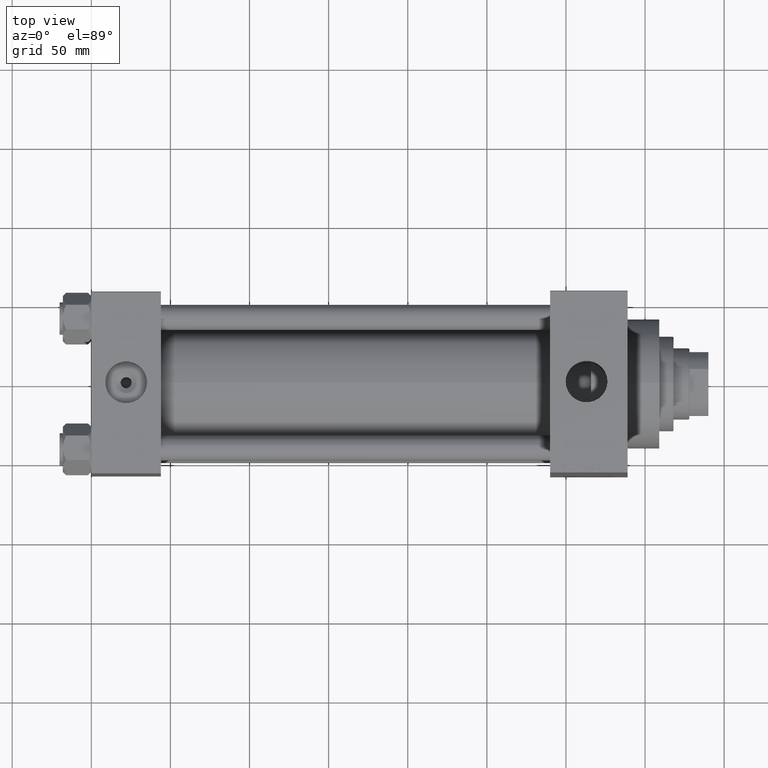
[diagram: clean part render]
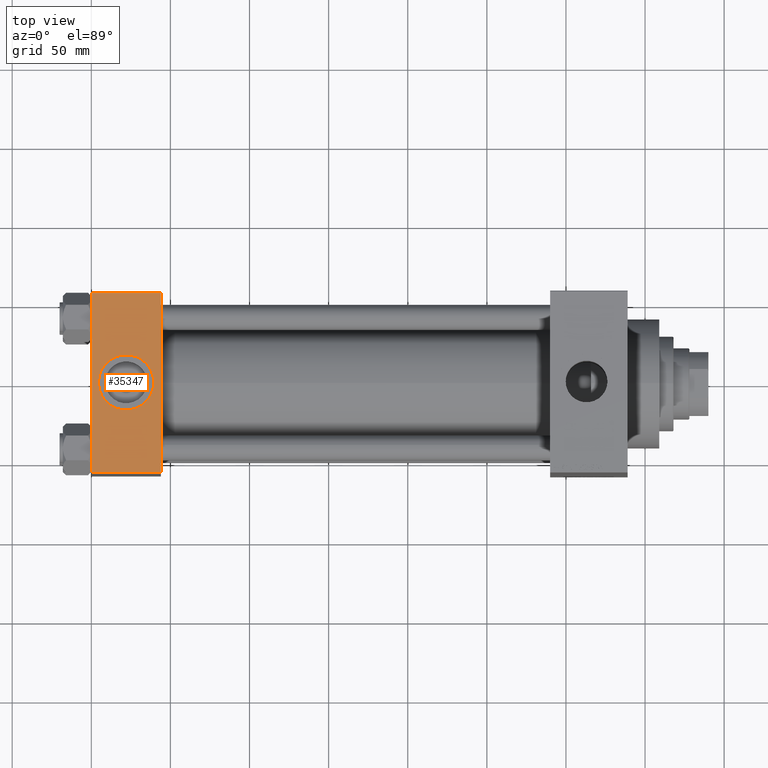
[diagram: same view with one face highlighted and labeled with its STEP entity id]
A machine part, top view. The second image highlights one B-rep face of the part: STEP entity #35347.
In plain terms, the highlighted planar face has unit normal (0, 0, -1).
Its self-contained STEP definition (entity closure, byte-faithful):
#1002 = CARTESIAN_POINT ( 'NONE',  ( 0.000000000000000000, -57.00000000000003553, 57.49999999999999289 ) ) ;
#2160 = CIRCLE ( 'NONE', #18419, 17.50000000000000000 ) ;
#4334 = DIRECTION ( 'NONE',  ( -1.000000000000000000, 0.000000000000000000, 0.000000000000000000 ) ) ;
#5635 = ORIENTED_EDGE ( 'NONE', *, *, #37370, .T. ) ;
#8023 = AXIS2_PLACEMENT_3D ( 'NONE', #28722, #46861, #25569 ) ;
#8460 = VERTEX_POINT ( 'NONE', #29396 ) ;
#8983 = VECTOR ( 'NONE', #4334, 1000.000000000000000 ) ;
#9064 = EDGE_CURVE ( 'NONE', #21210, #8460, #34822, .T. ) ;
#13057 = CIRCLE ( 'NONE', #40099, 17.50000000000000000 ) ;
#13118 = DIRECTION ( 'NONE',  ( 0.000000000000000000, -1.000000000000000000, -1.206764157201257045E-16 ) ) ;
#13966 = PLANE ( 'NONE',  #8023 ) ;
#14254 = ORIENTED_EDGE ( 'NONE', *, *, #27647, .F. ) ;
#16074 = EDGE_CURVE ( 'NONE', #26790, #17550, #13057, .T. ) ;
#16242 = DIRECTION ( 'NONE',  ( 0.000000000000000000, -1.000000000000000000, -1.206764157201257045E-16 ) ) ;
#17550 = VERTEX_POINT ( 'NONE', #22814 ) ;
#17672 = VERTEX_POINT ( 'NONE', #1002 ) ;
#18419 = AXIS2_PLACEMENT_3D ( 'NONE', #26108, #46151, #19810 ) ;
#19810 = DIRECTION ( 'NONE',  ( 1.000000000000000000, 0.000000000000000000, 0.000000000000000000 ) ) ;
#20220 = ORIENTED_EDGE ( 'NONE', *, *, #42184, .T. ) ;
#20472 = VECTOR ( 'NONE', #16242, 1000.000000000000000 ) ;
#21210 = VERTEX_POINT ( 'NONE', #36100 ) ;
#21400 = CARTESIAN_POINT ( 'NONE',  ( 44.00000000000000000, -57.00000000000003553, 57.49999999999999289 ) ) ;
#21885 = ORIENTED_EDGE ( 'NONE', *, *, #16074, .F. ) ;
#22094 = CARTESIAN_POINT ( 'NONE',  ( 39.50000000000000000, -8.673617379884035472E-15, 57.50000000000000000 ) ) ;
#22814 = CARTESIAN_POINT ( 'NONE',  ( 4.499999999999997335, -6.530485481376167224E-15, 57.50000000000000000 ) ) ;
#24101 = CARTESIAN_POINT ( 'NONE',  ( 22.00000000000000000, -8.673617379884035472E-15, 57.50000000000000000 ) ) ;
#24609 = FACE_BOUND ( 'NONE', #32102, .T. ) ;
#24843 = FACE_OUTER_BOUND ( 'NONE', #45849, .T. ) ;
#25569 = DIRECTION ( 'NONE',  ( 0.000000000000000000, 1.000000000000000000, 1.206764157201257045E-16 ) ) ;
#26050 = VECTOR ( 'NONE', #43415, 1000.000000000000000 ) ;
#26108 = CARTESIAN_POINT ( 'NONE',  ( 22.00000000000000000, -8.673617379884035472E-15, 57.50000000000000000 ) ) ;
#26790 = VERTEX_POINT ( 'NONE', #22094 ) ;
#27132 = CARTESIAN_POINT ( 'NONE',  ( 0.000000000000000000, 57.49999999999999289, 57.50000000000000711 ) ) ;
#27647 = EDGE_CURVE ( 'NONE', #21210, #38454, #46253, .T. ) ;
#27732 = DIRECTION ( 'NONE',  ( 0.000000000000000000, 0.000000000000000000, 1.000000000000000000 ) ) ;
#28722 = CARTESIAN_POINT ( 'NONE',  ( 44.00000000000000000, 57.49999999999999289, 57.50000000000000711 ) ) ;
#29396 = CARTESIAN_POINT ( 'NONE',  ( 0.000000000000000000, 57.00000000000000711, 57.50000000000000711 ) ) ;
#30529 = LINE ( 'NONE', #27132, #20472 ) ;
#31252 = CARTESIAN_POINT ( 'NONE',  ( 44.00000000000000000, -57.00000000000003553, 57.49999999999999289 ) ) ;
#31823 = VECTOR ( 'NONE', #13118, 1000.000000000000000 ) ;
#32057 = ORIENTED_EDGE ( 'NONE', *, *, #9064, .T. ) ;
#32102 = EDGE_LOOP ( 'NONE', ( #21885, #45479 ) ) ;
#32530 = LINE ( 'NONE', #21400, #26050 ) ;
#34822 = LINE ( 'NONE', #37743, #8983 ) ;
#35134 = CARTESIAN_POINT ( 'NONE',  ( 44.00000000000000000, 57.49999999999999289, 57.50000000000000711 ) ) ;
#35347 = ADVANCED_FACE ( 'NONE', ( #24609, #24843 ), #13966, .F. ) ;
#36100 = CARTESIAN_POINT ( 'NONE',  ( 44.00000000000000000, 57.00000000000000711, 57.50000000000000711 ) ) ;
#37370 = EDGE_CURVE ( 'NONE', #8460, #17672, #30529, .T. ) ;
#37743 = CARTESIAN_POINT ( 'NONE',  ( 0.000000000000000000, 57.00000000000000711, 57.50000000000000711 ) ) ;
#38454 = VERTEX_POINT ( 'NONE', #31252 ) ;
#38864 = DIRECTION ( 'NONE',  ( 1.000000000000000000, 0.000000000000000000, 0.000000000000000000 ) ) ;
#40099 = AXIS2_PLACEMENT_3D ( 'NONE', #24101, #27732, #38864 ) ;
#42184 = EDGE_CURVE ( 'NONE', #17672, #38454, #32530, .T. ) ;
#43415 = DIRECTION ( 'NONE',  ( 1.000000000000000000, 0.000000000000000000, 0.000000000000000000 ) ) ;
#44684 = EDGE_CURVE ( 'NONE', #17550, #26790, #2160, .T. ) ;
#45479 = ORIENTED_EDGE ( 'NONE', *, *, #44684, .F. ) ;
#45849 = EDGE_LOOP ( 'NONE', ( #5635, #20220, #14254, #32057 ) ) ;
#46151 = DIRECTION ( 'NONE',  ( 0.000000000000000000, 0.000000000000000000, 1.000000000000000000 ) ) ;
#46253 = LINE ( 'NONE', #35134, #31823 ) ;
#46861 = DIRECTION ( 'NONE',  ( 0.000000000000000000, 1.206764157201257045E-16, -1.000000000000000000 ) ) ;